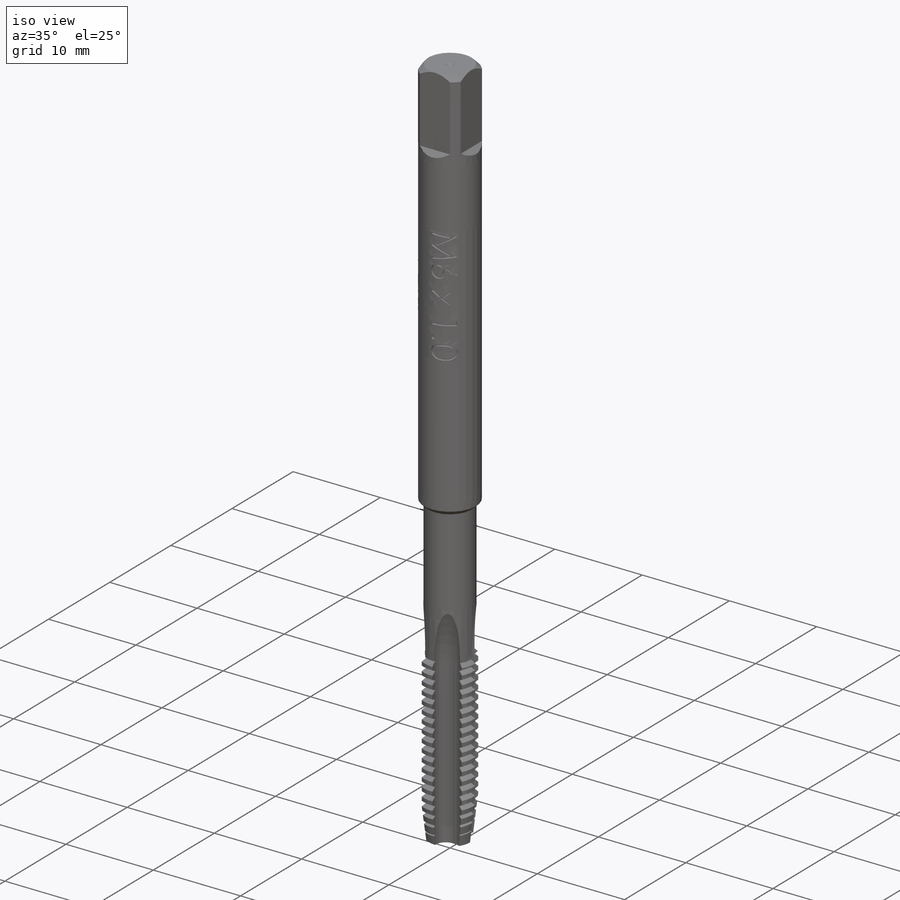
[diagram: iso view]
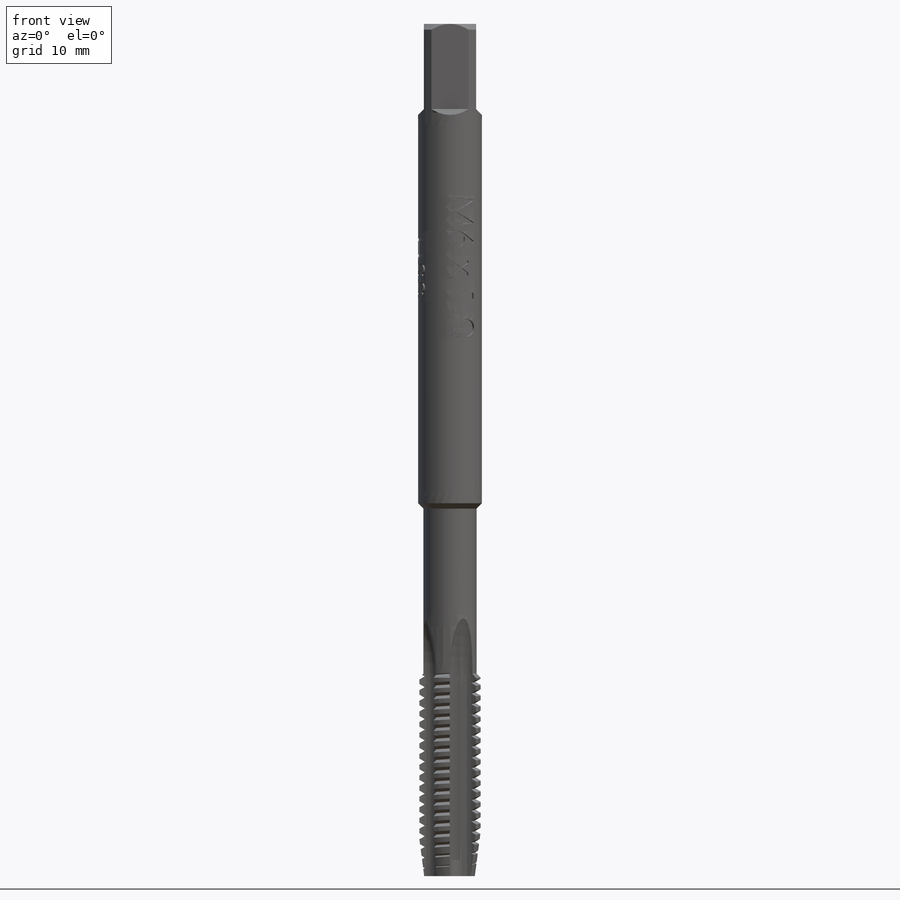
[diagram: front view]
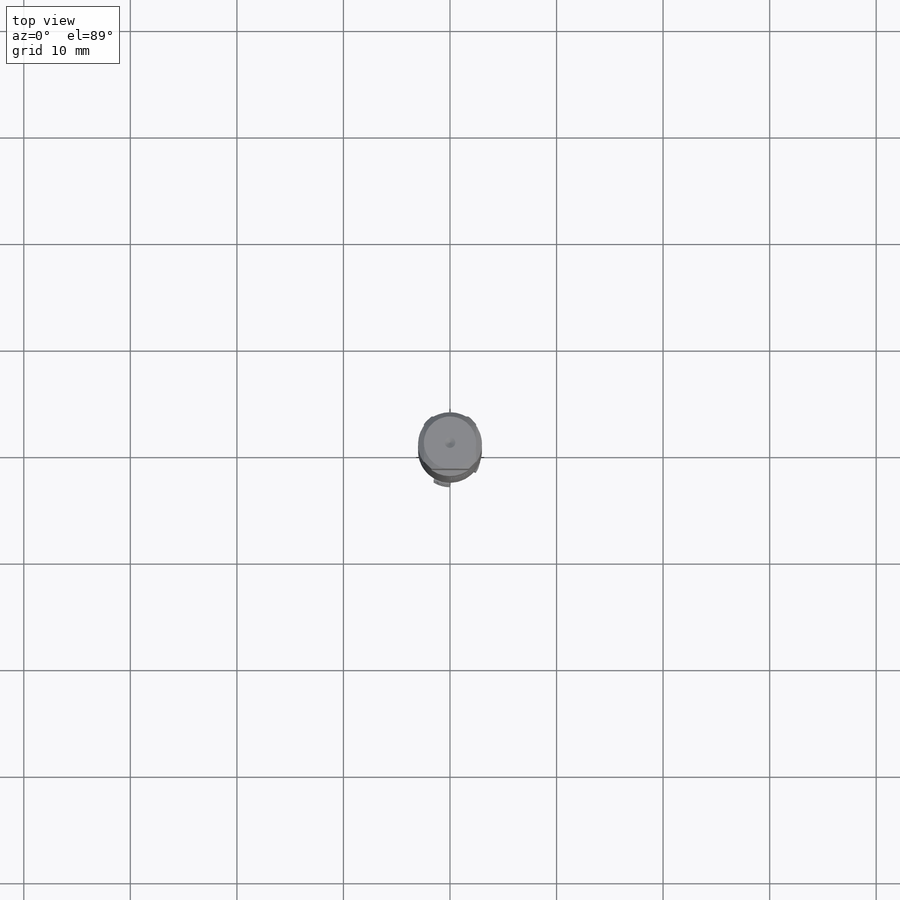
[diagram: top view]
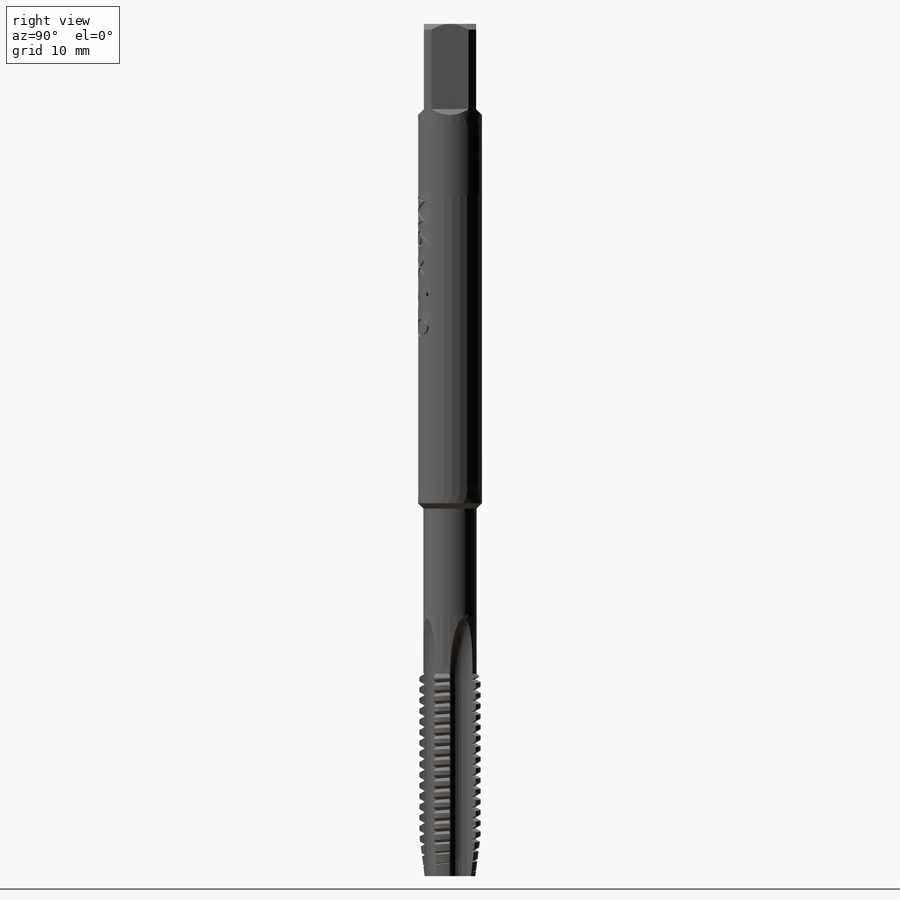
[diagram: right view]
SOLIDWORKS PART (.sldprt)
format: sldprt  version: not decoded by parser v0  size: 1,528,832 bytes
history: native  units: mm
features: sketch x16, cut_extrude x5, hole x4, material x1, revolve x1, cut_revolve x1, pattern_circular x1, plane x1, helix x1, sweep x1 (+16 scaffold rows collapsed)
feature tree (48):
  scaffold x16  (default folders/planes/origin — collapsed)
  material  "Material <not specified>"
  sketch  "Sketch1"  dims[c1.D1=80.0mm c1.D2=45.0mm c1.D3=19.0mm c1.D4=3.0mm c1.D5=3.0mm c1.D6=2.5mm c2.D4=5.0mm c2.D5=3.0mm c2.D6=3.0mm c2.D7=0.5mm c3.D7=~184.398334deg c4.D7=3.0mm c5.D7=45.0deg c5.D8=0.5mm c6.D8=~160.038161deg c7.D8=~1.464583mm c8.D8=135.0deg c8.D9=~0.934806mm c9.D9=135.0deg c9.D10=2.5mm]
  revolve  "Main Body"  Angle=360deg
  sketch  "Sketch2"  dims[D1=4.9mm D2=4.9mm D3=2.45mm D4=2.45mm]
  cut_extrude  "SquareFlats"  Depth=8mm
  sketch  "Sketch3"  dims[D1=0.55mm D2=0.55mm D3=0.55mm]
  cut_extrude  "2ChamferA"  Depth=8mm
  sketch  "Sketch5"  dims[D1=0.55mm D2=0.55mm]
  cut_extrude  "2ChamferB"  Depth=8mm
  sketch  "Sketch6"  dims[D1=0.55mm]
  cut_revolve  "RoundTop"  Angle=360deg
  hole  "TopCenterHole"  Diameter=1mm Depth=0.01mm
  sketch  "3DSketch1"
  sketch  "Sketch7"  dims[hole-wizard template sketch: 47 standard entries collapsed; hole parameters kept: c15.Hole Depth=0.01mm c15.D3=~14.816244mm c15.Drill Angle=118.0deg]
  sketch  "Sketch8"
  cut_extrude  "Flutes"  Depth=19mm
  sketch  "Sketch9"  dims[D1=10.0mm]
  hole  "FluteTop"  [1 undecoded]
  sketch  "Axis"
  pattern_circular  "PatterFluteTops"  Count=4 Angle=90deg
  sketch  "Sketch15"
  hole  "BottomCentreHole"  [1 undecoded]
  plane  "WritingPlane"  Offset=3mm
  sketch  "Sketch16"  dims[D1=0.2mm]
  sketch  "Sketch17"  dims[D1=4.75mm]
  helix  "Helix/Spiral1"  Pitch=19mm
  sketch  "Sketch19"  dims[c1.D1=2.5mm c1.D2=4.0mm c1.D3=1.0mm c1.D4=~1.181188mm c2.D4=30.0deg c2.D5=~1.154701mm c2.D3=~0.499493mm c2.D2=0.5mm c3.D3=2.0mm c4.D3=60.0deg c4.D1=2.5mm c4.D4=2.375mm c4.D5=4.0mm c4.D2=1.0mm c5.D1=3.0mm]
  sweep  "Threads"
  sketch  "Sketch20"  dims[D1=5.75mm]
  cut_extrude  "MajDiaAdjustment"  Depth=29mm
  sketch  "Sketch22"  dims[c1.D2=~14.489672mm c2.D2=7.5deg c2.D1=2.375mm]
  hole  "Taper"  [1 undecoded]
decode coverage: 22 of 30 modeling features carry decoded parameters
note: ~ marks probable driven/reference dimensions
note: 3 parameter values undecoded
summary: no parameter record found for 3 features
note: suppression state not decoded; provenance and decode notes live in map.json
